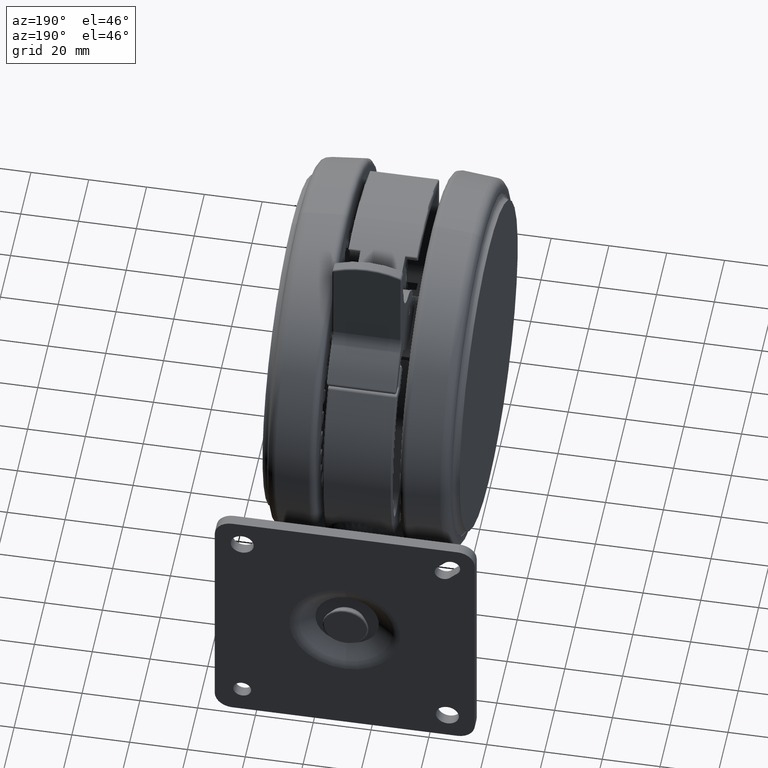
[diagram: clean part render]
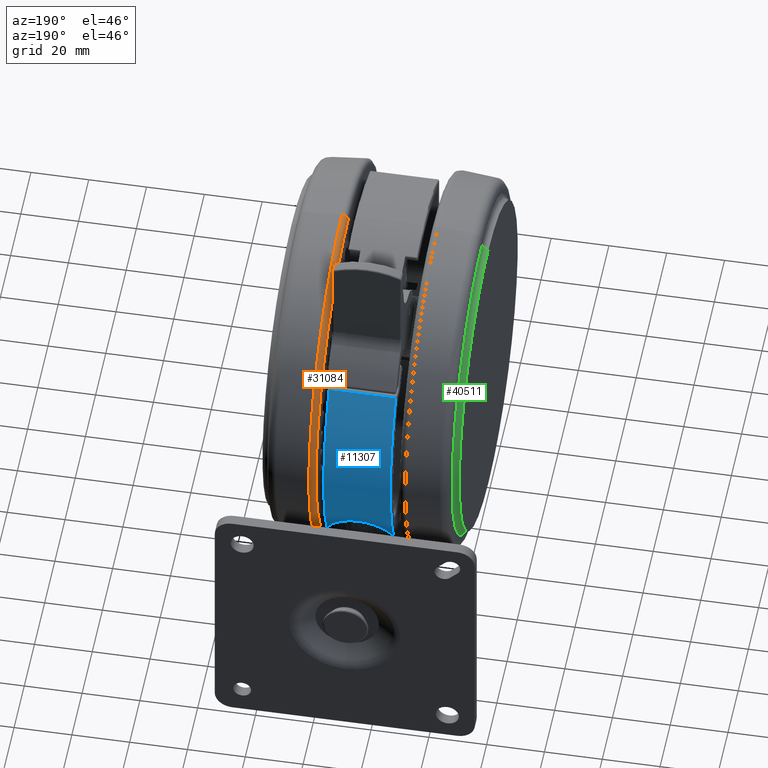
[diagram: same view with three faces highlighted in distinct colors, each labeled with its STEP entity id]
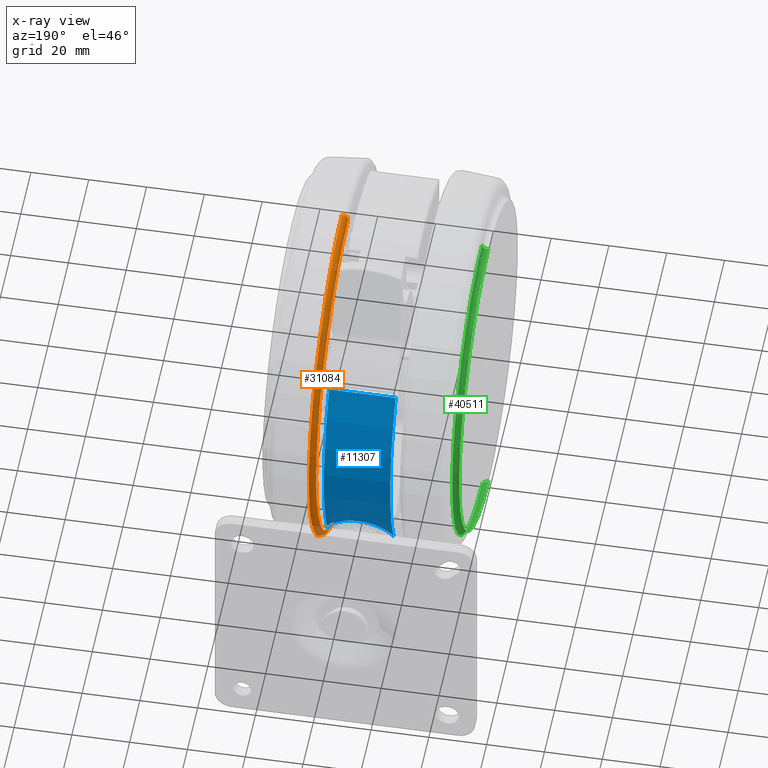
[diagram: x-ray of the same camera — body ghosted, the three highlighted faces saturated]
A machine part, auxiliary view with three faces highlighted in distinct colors.
The next image is the same camera in x-ray (body ghosted, the three faces saturated) — at least one of them is partly hidden behind the body in this view.
Their STEP definitions:

[orange] entity #31084 — the highlighted toroidal blend (fillet) surface has major radius 63 mm and minor (blend) radius 2 mm.
#1362 = AXIS2_PLACEMENT_3D ( 'NONE', #22039, #9218, #66652 ) ;
#1935 = CIRCLE ( 'NONE', #74326, 63.00000000000000000 ) ;
#2652 = CARTESIAN_POINT ( 'NONE',  ( 2.775557561562891400E-014, -2.775557561562891400E-014, -17.42703041981686600 ) ) ;
#3529 = AXIS2_PLACEMENT_3D ( 'NONE', #2652, #47265, #9038 ) ;
#4265 = CIRCLE ( 'NONE', #3529, 64.99250634235660600 ) ;
#5438 = CARTESIAN_POINT ( 'NONE',  ( 64.99250634235663400, -1.979628912955580400E-014, -17.42703041981686600 ) ) ;
#7699 = CARTESIAN_POINT ( 'NONE',  ( -62.99999999999997200, -2.004030078100058700E-014, -17.60000000000009400 ) ) ;
#8053 = EDGE_CURVE ( 'NONE', #79032, #30667, #4265, .T. ) ;
#9038 = DIRECTION ( 'NONE',  ( 1.000000000000000000, 0.0000000000000000000, 0.0000000000000000000 ) ) ;
#9218 = DIRECTION ( 'NONE',  ( 0.0000000000000000000, 0.0000000000000000000, 1.000000000000000000 ) ) ;
#11818 = CARTESIAN_POINT ( 'NONE',  ( 2.775557561562891400E-014, -2.775557561562891400E-014, -19.60000000000010400 ) ) ;
#14101 = DIRECTION ( 'NONE',  ( -1.000000000000000000, 1.224646799147349500E-016, 0.0000000000000000000 ) ) ;
#16606 = FACE_OUTER_BOUND ( 'NONE', #41290, .T. ) ;
#18242 = DIRECTION ( 'NONE',  ( 1.000000000000000000, 0.0000000000000000000, 0.0000000000000000000 ) ) ;
#19983 = EDGE_CURVE ( 'NONE', #62568, #30667, #42559, .T. ) ;
#22039 = CARTESIAN_POINT ( 'NONE',  ( 2.775557561562891400E-014, -2.775557561562891400E-014, -17.60000000000009400 ) ) ;
#24512 = VERTEX_POINT ( 'NONE', #58862 ) ;
#30364 = ORIENTED_EDGE ( 'NONE', *, *, #19983, .T. ) ;
#30517 = DIRECTION ( 'NONE',  ( 0.0000000000000000000, -1.000000000000000000, 0.0000000000000000000 ) ) ;
#30667 = VERTEX_POINT ( 'NONE', #67837 ) ;
#31084 = ADVANCED_FACE ( 'NONE', ( #16606 ), #48566, .T. ) ;
#34716 = ORIENTED_EDGE ( 'NONE', *, *, #51770, .T. ) ;
#38234 = CIRCLE ( 'NONE', #48254, 2.000000000000008900 ) ;
#40945 = ORIENTED_EDGE ( 'NONE', *, *, #8053, .F. ) ;
#41290 = EDGE_LOOP ( 'NONE', ( #34716, #30364, #40945, #81851 ) ) ;
#42559 = CIRCLE ( 'NONE', #80146, 2.000000000000001800 ) ;
#47265 = DIRECTION ( 'NONE',  ( 0.0000000000000000000, 0.0000000000000000000, 1.000000000000000000 ) ) ;
#48254 = AXIS2_PLACEMENT_3D ( 'NONE', #68755, #30517, #75092 ) ;
#48566 = TOROIDAL_SURFACE ( 'NONE', #1362, 63.00000000000000000, 2.000000000000008400 ) ;
#51770 = EDGE_CURVE ( 'NONE', #24512, #62568, #1935, .T. ) ;
#52327 = DIRECTION ( 'NONE',  ( 1.224646799147353200E-016, 1.000000000000000000, -0.0000000000000000000 ) ) ;
#56230 = CARTESIAN_POINT ( 'NONE',  ( -62.99999999999997200, -1.991829495527819700E-014, -19.60000000000010400 ) ) ;
#56417 = DIRECTION ( 'NONE',  ( 0.0000000000000000000, 0.0000000000000000000, 1.000000000000000000 ) ) ;
#58862 = CARTESIAN_POINT ( 'NONE',  ( 63.00000000000002800, -2.775557561562891400E-014, -19.60000000000010400 ) ) ;
#62568 = VERTEX_POINT ( 'NONE', #56230 ) ;
#66652 = DIRECTION ( 'NONE',  ( 1.000000000000000000, 0.0000000000000000000, 0.0000000000000000000 ) ) ;
#67837 = CARTESIAN_POINT ( 'NONE',  ( -64.99250634235657700, -2.775557561562891400E-014, -17.42703041981686600 ) ) ;
#68755 = CARTESIAN_POINT ( 'NONE',  ( 63.00000000000002800, -2.775557561562891400E-014, -17.60000000000009400 ) ) ;
#74326 = AXIS2_PLACEMENT_3D ( 'NONE', #11818, #56417, #18242 ) ;
#75092 = DIRECTION ( 'NONE',  ( 0.0000000000000000000, 0.0000000000000000000, -1.000000000000000000 ) ) ;
#79032 = VERTEX_POINT ( 'NONE', #5438 ) ;
#80146 = AXIS2_PLACEMENT_3D ( 'NONE', #7699, #52327, #14101 ) ;
#81851 = ORIENTED_EDGE ( 'NONE', *, *, #81991, .F. ) ;
#81991 = EDGE_CURVE ( 'NONE', #24512, #79032, #38234, .T. ) ;

[blue] entity #11307 — the highlighted cylindrical surface (partial cylindrical patch) has radius 65 mm, axis along (-1, 0, 0).
#91 = CARTESIAN_POINT ( 'NONE',  ( 21.67015956479912500, 61.28144073425520600, -41.31869377111444700 ) ) ;
#362 = CARTESIAN_POINT ( 'NONE',  ( 25.35360681897378400, 59.85148194636899900, -44.51417581782972400 ) ) ;
#2799 = CARTESIAN_POINT ( 'NONE',  ( 0.0000000000000000000, 0.0000000000000000000, -22.60000000000006900 ) ) ;
#5397 = CARTESIAN_POINT ( 'NONE',  ( 27.92590306755449700, 58.69533635111779500, -22.59998678528584600 ) ) ;
#5680 = CARTESIAN_POINT ( 'NONE',  ( 24.13795755566093200, 60.35253772253094000, -24.44338225758372500 ) ) ;
#5947 = CARTESIAN_POINT ( 'NONE',  ( 20.37157209290337400, 61.72523377728598600, -29.00752762653992900 ) ) ;
#6231 = CARTESIAN_POINT ( 'NONE',  ( 19.54512131529279600, 61.99184361767516500, -36.80211477293095600 ) ) ;
#6511 = CARTESIAN_POINT ( 'NONE',  ( 22.27253549177076800, 61.06650419923458600, -42.07451242591226800 ) ) ;
#6789 = CARTESIAN_POINT ( 'NONE',  ( 26.30316968427618500, 59.44255489925022600, -45.00662855525664000 ) ) ;
#8148 = LINE ( 'NONE', #72670, #38081 ) ;
#9185 = DIRECTION ( 'NONE',  ( 1.000000000000000000, -3.552713678800500900E-015, 0.0000000000000000000 ) ) ;
#10863 = CARTESIAN_POINT ( 'NONE',  ( -35.54687500000000000, 54.41892756876389800, -22.60000000000006900 ) ) ;
#11307 = ADVANCED_FACE ( 'NONE', ( #58567 ), #71517, .T. ) ;
#11446 = DIRECTION ( 'NONE',  ( 0.0000000000000000000, 0.0000000000000000000, 1.000000000000000000 ) ) ;
#11806 = CARTESIAN_POINT ( 'NONE',  ( 27.62642517994137100, 58.83713431076597500, -22.68826808428833200 ) ) ;
#12080 = CARTESIAN_POINT ( 'NONE',  ( 23.40862095568921600, 60.63911217040720900, -25.02255636260865000 ) ) ;
#12359 = CARTESIAN_POINT ( 'NONE',  ( 19.90790737072405400, 61.87663068302234100, -30.09609914001382700 ) ) ;
#12630 = CARTESIAN_POINT ( 'NONE',  ( 19.68975077168373400, 61.94613803237425000, -37.37453438217104900 ) ) ;
#12901 = CARTESIAN_POINT ( 'NONE',  ( 23.31383103802730600, 60.67521521096313100, -43.07854949590887400 ) ) ;
#13187 = CARTESIAN_POINT ( 'NONE',  ( 27.21710659369537700, 59.02741044994478900, -45.36349939107010000 ) ) ;
#13229 = DIRECTION ( 'NONE',  ( 0.0000000000000000000, 0.0000000000000000000, -1.000000000000000000 ) ) ;
#18221 = AXIS2_PLACEMENT_3D ( 'NONE', #2799, #47420, #9185 ) ;
#18234 = CARTESIAN_POINT ( 'NONE',  ( 27.39617166329022500, 58.94446628159057900, -22.76371515054742600 ) ) ;
#18503 = CARTESIAN_POINT ( 'NONE',  ( 22.25067191259084300, 61.07446460647479100, -26.13959871664137000 ) ) ;
#18786 = CARTESIAN_POINT ( 'NONE',  ( 19.53446099107078700, 61.99526671427586400, -31.40211027222164500 ) ) ;
#19055 = CARTESIAN_POINT ( 'NONE',  ( 20.17088575764760300, 61.79124011712932000, -38.72578671634456500 ) ) ;
#19328 = CARTESIAN_POINT ( 'NONE',  ( 23.67213790501916600, 60.53632407365591200, -43.37910290245623900 ) ) ;
#19331 = ORIENTED_EDGE ( 'NONE', *, *, #35154, .T. ) ;
#19589 = CARTESIAN_POINT ( 'NONE',  ( 27.42267506145585200, 58.93218258227798100, -45.43470148881331000 ) ) ;
#21197 = EDGE_CURVE ( 'NONE', #49458, #34077, #79205, .T. ) ;
#21976 = DIRECTION ( 'NONE',  ( -0.0000000000000000000, -0.0000000000000000000, 1.000000000000000000 ) ) ;
#24648 = CARTESIAN_POINT ( 'NONE',  ( 27.34814487594782800, 58.96676503255361000, -22.77986088566700600 ) ) ;
#24923 = CARTESIAN_POINT ( 'NONE',  ( 21.64952585980088200, 61.28873263384547000, -26.89637461909766400 ) ) ;
#25196 = CARTESIAN_POINT ( 'NONE',  ( 19.28304060778433600, 62.07398556647676500, -32.75484630788786700 ) ) ;
#25448 = CARTESIAN_POINT ( 'NONE',  ( 20.60295828151467000, 61.64858069595445800, -39.64227792800731000 ) ) ;
#25722 = CARTESIAN_POINT ( 'NONE',  ( 24.42173400849698300, 60.23835657775620700, -43.94026350348315900 ) ) ;
#25986 = CARTESIAN_POINT ( 'NONE',  ( 27.82032428552507900, 58.74565176112127300, -45.56163820931893600 ) ) ;
#27747 = ORIENTED_EDGE ( 'NONE', *, *, #21197, .T. ) ;
#29515 = CIRCLE ( 'NONE', #18221, 65.00000000000000000 ) ;
#31009 = CARTESIAN_POINT ( 'NONE',  ( 26.89241669005522400, 59.17712756015789200, -22.93883237918613500 ) ) ;
#31292 = CARTESIAN_POINT ( 'NONE',  ( 21.16972210647392700, 61.45657141387963700, -27.56596694341793000 ) ) ;
#31569 = CARTESIAN_POINT ( 'NONE',  ( 19.22636675363504800, 62.09143920503182600, -34.78746132980300100 ) ) ;
#31841 = CARTESIAN_POINT ( 'NONE',  ( 21.10159326407777400, 61.47976129959460000, -40.50638821008343600 ) ) ;
#32113 = CARTESIAN_POINT ( 'NONE',  ( 24.94913981047005800, 60.02134493640235000, -44.27811818790105000 ) ) ;
#34077 = VERTEX_POINT ( 'NONE', #54531 ) ;
#35154 = EDGE_CURVE ( 'NONE', #49687, #61794, #29515, .T. ) ;
#36806 = AXIS2_PLACEMENT_3D ( 'NONE', #38622, #13229, #76738 ) ;
#37475 = CARTESIAN_POINT ( 'NONE',  ( 25.69817246601970600, 59.70742912799946100, -23.46208229475553600 ) ) ;
#37754 = CARTESIAN_POINT ( 'NONE',  ( 20.66972691797241500, 61.62604639292821000, -28.41821584794706700 ) ) ;
#38037 = CARTESIAN_POINT ( 'NONE',  ( 19.43650582107547100, 62.02598830639885800, -36.30163135562678200 ) ) ;
#38081 = VECTOR ( 'NONE', #21976, 1000.000000000000000 ) ;
#38300 = CARTESIAN_POINT ( 'NONE',  ( 21.47414799631831200, 61.35040148085507600, -41.05276035806832600 ) ) ;
#38569 = CARTESIAN_POINT ( 'NONE',  ( 25.21985554605142000, 59.90796404605941900, -44.43807676528508200 ) ) ;
#38622 = CARTESIAN_POINT ( 'NONE',  ( 0.0000000000000000000, 0.0000000000000000000, -22.10000000000006900 ) ) ;
#42243 = CARTESIAN_POINT ( 'NONE',  ( 27.79232637209798500, 58.75890123488316200, -22.63798909152732700 ) ) ;
#43884 = CARTESIAN_POINT ( 'NONE',  ( 24.38946645385690500, 60.25139982984629200, -24.26384737465338800 ) ) ;
#44162 = CARTESIAN_POINT ( 'NONE',  ( 20.44288935957102300, 61.70165689065495900, -28.85910942607371200 ) ) ;
#44434 = CARTESIAN_POINT ( 'NONE',  ( 19.52615598186860500, 61.99781944255990900, -36.72101404127205600 ) ) ;
#44494 = EDGE_CURVE ( 'NONE', #61794, #49458, #51242, .T. ) ;
#44721 = CARTESIAN_POINT ( 'NONE',  ( 21.76791565473871500, 61.24679039606800800, -41.44564791617381200 ) ) ;
#45002 = CARTESIAN_POINT ( 'NONE',  ( 25.68911813592593100, 59.70913800842981800, -44.70101322627728300 ) ) ;
#46616 = CARTESIAN_POINT ( 'NONE',  ( 27.95437384687145200, 58.68178101843090400, -45.60001317750182900 ) ) ;
#47420 = DIRECTION ( 'NONE',  ( -0.0000000000000000000, -0.0000000000000000000, -1.000000000000000000 ) ) ;
#49458 = VERTEX_POINT ( 'NONE', #46616 ) ;
#49687 = VERTEX_POINT ( 'NONE', #10863 ) ;
#49699 = CARTESIAN_POINT ( 'NONE',  ( 0.0000000000000000000, 0.0000000000000000000, -45.60000000000007200 ) ) ;
#49804 = ORIENTED_EDGE ( 'NONE', *, *, #66877, .T. ) ;
#50320 = CARTESIAN_POINT ( 'NONE',  ( 23.64653828361601000, 60.54676731015368300, -24.82376520894524300 ) ) ;
#50603 = CARTESIAN_POINT ( 'NONE',  ( 20.16148068567649100, 61.79430745747500700, -29.46952685547477200 ) ) ;
#50881 = CARTESIAN_POINT ( 'NONE',  ( 19.58523465069505700, 61.97918219874328100, -36.96602451009528100 ) ) ;
#51152 = CARTESIAN_POINT ( 'NONE',  ( 22.71460384025984800, 60.90410585044376300, -42.54105573440799000 ) ) ;
#51242 = B_SPLINE_CURVE_WITH_KNOTS ( 'NONE', 3,
 ( #5397, #42243, #11806, #56408, #18234, #62824, #24648, #69258, #31009, #75580, #37475, #82016, #43884, #5680, #50320, #12080, #56692, #18503, #63104, #24923, #69542, #31292, #75853, #37754, #82281, #44162, #5947, #50603, #12359, #56959, #18786, #63372, #25196, #69810, #31569, #76127, #38037, #82553, #44434, #6231, #50881, #12630, #57230, #19055, #63653, #25448, #70097, #31841, #76414, #38300, #91, #44721, #6511, #51152, #12901, #57514, #19328, #63920, #25722, #70360, #32113, #76683, #38569, #362, #45002, #6789, #51421, #13187, #57783, #19589, #64183, #25986, #70626 ),
 .UNSPECIFIED., .F., .F.,
 ( 4, 1, 1, 2, 2, 1, 2, 2, 2, 2, 2, 2, 1, 2, 2, 2, 1, 2, 2, 2, 2, 2, 2, 1, 1, 2, 2, 2, 2, 2, 2, 2, 1, 2, 2, 2, 1, 1, 2, 2, 1, 4 ),
 ( 0.1067419510894592100, 0.1190486621802158000, 0.1221253399529049600, 0.1236636788392495700, 0.1252020177255941900, 0.1313553732709725800, 0.1559687954524863800, 0.2051956398155139700, 0.2298090619970276100, 0.2544224841785412400, 0.3036493285415684500, 0.3159560396323252100, 0.3282627507230819200, 0.3528761729045951600, 0.3651828839953517600, 0.3774895950861083000, 0.4021030172676214900, 0.4267164394491346800, 0.4513298616306480900, 0.5005567059936749700, 0.5497835503567017900, 0.5620902614474584400, 0.5682436169928367600, 0.5743969725382150900, 0.5990103947197285000, 0.6236238169012419100, 0.6482372390827554300, 0.6728506612642688500, 0.6851573723550256100, 0.6974640834457823700, 0.7466909278088093000, 0.7589976388995658400, 0.7713043499903226000, 0.7959177721718361200, 0.8082244832625930000, 0.8143778388079716500, 0.8205311943533503100, 0.8451446165348656100, 0.8697580387163808000, 0.8759113942617594600, 0.8820647498071380000, 0.8943714608978949900 ),
 .UNSPECIFIED. ) ;
#51421 = CARTESIAN_POINT ( 'NONE',  ( 26.86298689317154500, 59.19017779428045100, -45.23463577216099200 ) ) ;
#54531 = CARTESIAN_POINT ( 'NONE',  ( -35.54687500000000000, 54.41892756876389800, -45.60000000000007200 ) ) ;
#56059 = DIRECTION ( 'NONE',  ( 1.000000000000000000, 0.0000000000000000000, 0.0000000000000000000 ) ) ;
#56408 = CARTESIAN_POINT ( 'NONE',  ( 27.44541606508240500, 58.92157019464794100, -22.74730794547513200 ) ) ;
#56692 = CARTESIAN_POINT ( 'NONE',  ( 22.69148590163013400, 60.91271055391931800, -25.67161477966031700 ) ) ;
#56959 = CARTESIAN_POINT ( 'NONE',  ( 19.70776321033785900, 61.94039336677740000, -30.74381804980476600 ) ) ;
#57230 = CARTESIAN_POINT ( 'NONE',  ( 19.91594499075797800, 61.87404756975024600, -38.09847191439211400 ) ) ;
#57514 = CARTESIAN_POINT ( 'NONE',  ( 23.43163832220241400, 60.62981915594368600, -43.17996524113615900 ) ) ;
#57783 = CARTESIAN_POINT ( 'NONE',  ( 27.29120315660091100, 58.99318165434271300, -45.38961938130581300 ) ) ;
#58567 = FACE_OUTER_BOUND ( 'NONE', #65309, .T. ) ;
#61794 = VERTEX_POINT ( 'NONE', #79478 ) ;
#62824 = CARTESIAN_POINT ( 'NONE',  ( 27.36336916197056000, 58.95970111128236400, -22.77472115942863700 ) ) ;
#63104 = CARTESIAN_POINT ( 'NONE',  ( 21.74756569991431800, 61.25401864652220500, -26.76867654488429300 ) ) ;
#63372 = CARTESIAN_POINT ( 'NONE',  ( 19.46034929420567700, 62.01853465009203600, -31.74024620383640600 ) ) ;
#63653 = CARTESIAN_POINT ( 'NONE',  ( 20.45259772501639300, 61.69856751788859100, -39.34500890495279200 ) ) ;
#63920 = CARTESIAN_POINT ( 'NONE',  ( 24.03853599999608200, 60.39264876353387700, -43.67055891784971100 ) ) ;
#64183 = CARTESIAN_POINT ( 'NONE',  ( 27.62053252951432800, 58.83998178103006900, -45.50066272967117700 ) ) ;
#65309 = EDGE_LOOP ( 'NONE', ( #75277, #27747, #49804, #19331 ) ) ;
#66877 = EDGE_CURVE ( 'NONE', #34077, #49687, #8148, .T. ) ;
#67985 = AXIS2_PLACEMENT_3D ( 'NONE', #49699, #11446, #56059 ) ;
#69258 = CARTESIAN_POINT ( 'NONE',  ( 27.25667273886927300, 59.00915434209894500, -22.81098914732393400 ) ) ;
#69542 = CARTESIAN_POINT ( 'NONE',  ( 21.45418476367681700, 61.35738483624606900, -27.16199617994645600 ) ) ;
#69810 = CARTESIAN_POINT ( 'NONE',  ( 19.22436531436573000, 62.09205890737770500, -33.43434025363112000 ) ) ;
#70097 = CARTESIAN_POINT ( 'NONE',  ( 20.92787093554782300, 61.53904134677835500, -40.22387728630288000 ) ) ;
#70360 = CARTESIAN_POINT ( 'NONE',  ( 24.81591559312336100, 60.07653874074011900, -44.19546713594325400 ) ) ;
#70626 = CARTESIAN_POINT ( 'NONE',  ( 27.95437384687145200, 58.68178101843090400, -45.60001317750182900 ) ) ;
#71517 = CYLINDRICAL_SURFACE ( 'NONE', #36806, 65.00000000000000000 ) ;
#72670 = CARTESIAN_POINT ( 'NONE',  ( -35.54687500000000000, 54.41892756876389800, -22.10000000000006900 ) ) ;
#75277 = ORIENTED_EDGE ( 'NONE', *, *, #44494, .T. ) ;
#75580 = CARTESIAN_POINT ( 'NONE',  ( 26.53638836899736500, 59.33728492795938100, -23.08332653722088100 ) ) ;
#75853 = CARTESIAN_POINT ( 'NONE',  ( 20.91104773475947800, 61.54475527762041800, -27.98655297348422600 ) ) ;
#76127 = CARTESIAN_POINT ( 'NONE',  ( 19.28682181034139700, 62.07281407466353300, -35.46171010078335700 ) ) ;
#76414 = CARTESIAN_POINT ( 'NONE',  ( 21.37891699338514000, 61.38364179587569700, -40.91772146270345400 ) ) ;
#76683 = CARTESIAN_POINT ( 'NONE',  ( 25.15169236763343400, 59.93661424670376900, -44.39846952754439300 ) ) ;
#76738 = DIRECTION ( 'NONE',  ( -1.000000000000000000, 0.0000000000000000000, 0.0000000000000000000 ) ) ;
#79205 = CIRCLE ( 'NONE', #67985, 65.00000000000000000 ) ;
#79478 = CARTESIAN_POINT ( 'NONE',  ( 27.92590306755449700, 58.69533635111779500, -22.59998678528584600 ) ) ;
#82016 = CARTESIAN_POINT ( 'NONE',  ( 25.16104298967593400, 59.93522284192272300, -23.75721250411366700 ) ) ;
#82281 = CARTESIAN_POINT ( 'NONE',  ( 20.59217860871009600, 61.65199403560887200, -28.56394961350077800 ) ) ;
#82553 = CARTESIAN_POINT ( 'NONE',  ( 19.47014680937347500, 62.01544094387734400, -36.46947112115134400 ) ) ;

[green] entity #40511 — the highlighted toroidal blend (fillet) surface has major radius 59.2 mm and minor (blend) radius 2.2 mm.
#1029 = CARTESIAN_POINT ( 'NONE',  ( 57.00000000000000000, 0.0000000000000000000, -68.07944947177043100 ) ) ;
#1332 = VERTEX_POINT ( 'NONE', #39027 ) ;
#1516 = CIRCLE ( 'NONE', #45232, 58.81739130434760200 ) ;
#3935 = VERTEX_POINT ( 'NONE', #8942 ) ;
#6075 = ORIENTED_EDGE ( 'NONE', *, *, #7506, .F. ) ;
#7506 = EDGE_CURVE ( 'NONE', #34197, #3935, #8338, .T. ) ;
#8338 = CIRCLE ( 'NONE', #66978, 2.200000000000000600 ) ;
#8903 = DIRECTION ( 'NONE',  ( -0.0000000000000000000, -0.0000000000000000000, -1.000000000000000000 ) ) ;
#8942 = CARTESIAN_POINT ( 'NONE',  ( -57.00000000000000000, 6.980486755139912900E-015, -68.07944947177043100 ) ) ;
#9148 = CARTESIAN_POINT ( 'NONE',  ( -59.20000000000000300, 7.249909050952329900E-015, -68.07944947177043100 ) ) ;
#10164 = CARTESIAN_POINT ( 'NONE',  ( 59.20000000000000300, 0.0000000000000000000, -68.07944947177043100 ) ) ;
#15384 = CARTESIAN_POINT ( 'NONE',  ( 0.0000000000000000000, 0.0000000000000000000, -68.07944947177043100 ) ) ;
#15542 = DIRECTION ( 'NONE',  ( -1.000000000000000000, 1.224646799147351500E-016, 0.0000000000000000000 ) ) ;
#16560 = DIRECTION ( 'NONE',  ( 0.0000000000000000000, 0.0000000000000000000, -1.000000000000000000 ) ) ;
#21724 = CARTESIAN_POINT ( 'NONE',  ( 0.0000000000000000000, 0.0000000000000000000, -65.91297524251768900 ) ) ;
#22361 = ORIENTED_EDGE ( 'NONE', *, *, #39332, .T. ) ;
#23259 = FACE_OUTER_BOUND ( 'NONE', #59733, .T. ) ;
#28079 = DIRECTION ( 'NONE',  ( -1.000000000000000000, 0.0000000000000000000, 0.0000000000000000000 ) ) ;
#30039 = AXIS2_PLACEMENT_3D ( 'NONE', #10164, #54765, #16560 ) ;
#34197 = VERTEX_POINT ( 'NONE', #81477 ) ;
#34623 = DIRECTION ( 'NONE',  ( 1.000000000000000000, 0.0000000000000000000, 0.0000000000000000000 ) ) ;
#37287 = ORIENTED_EDGE ( 'NONE', *, *, #64409, .T. ) ;
#39027 = CARTESIAN_POINT ( 'NONE',  ( 58.81739130435092700, 0.0000000000000000000, -65.91297524251768900 ) ) ;
#39332 = EDGE_CURVE ( 'NONE', #34197, #1332, #1516, .T. ) ;
#40511 = ADVANCED_FACE ( 'NONE', ( #23259 ), #72111, .F. ) ;
#45232 = AXIS2_PLACEMENT_3D ( 'NONE', #21724, #66332, #28079 ) ;
#47126 = CARTESIAN_POINT ( 'NONE',  ( 0.0000000000000000000, 0.0000000000000000000, -68.07944947177043100 ) ) ;
#48314 = CIRCLE ( 'NONE', #49552, 57.00000000000000000 ) ;
#49552 = AXIS2_PLACEMENT_3D ( 'NONE', #47126, #8903, #53521 ) ;
#53521 = DIRECTION ( 'NONE',  ( 1.000000000000000000, 0.0000000000000000000, 0.0000000000000000000 ) ) ;
#53610 = DIRECTION ( 'NONE',  ( 0.0000000000000000000, 0.0000000000000000000, 1.000000000000000000 ) ) ;
#53751 = DIRECTION ( 'NONE',  ( 1.224646799147353200E-016, 1.000000000000000000, -0.0000000000000000000 ) ) ;
#54765 = DIRECTION ( 'NONE',  ( 0.0000000000000000000, -1.000000000000000000, 0.0000000000000000000 ) ) ;
#58604 = AXIS2_PLACEMENT_3D ( 'NONE', #15384, #53610, #34623 ) ;
#59733 = EDGE_LOOP ( 'NONE', ( #6075, #22361, #37287, #74628 ) ) ;
#64409 = EDGE_CURVE ( 'NONE', #1332, #76800, #67597, .T. ) ;
#66332 = DIRECTION ( 'NONE',  ( 0.0000000000000000000, 0.0000000000000000000, -1.000000000000000000 ) ) ;
#66978 = AXIS2_PLACEMENT_3D ( 'NONE', #9148, #53751, #15542 ) ;
#67597 = CIRCLE ( 'NONE', #30039, 2.199999999999993500 ) ;
#72111 = TOROIDAL_SURFACE ( 'NONE', #58604, 59.20000000000000300, 2.200000000000000200 ) ;
#74496 = EDGE_CURVE ( 'NONE', #3935, #76800, #48314, .T. ) ;
#74628 = ORIENTED_EDGE ( 'NONE', *, *, #74496, .F. ) ;
#76800 = VERTEX_POINT ( 'NONE', #1029 ) ;
#81477 = CARTESIAN_POINT ( 'NONE',  ( -58.81739130435092700, 7.203052999507073600E-015, -65.91297524251768900 ) ) ;